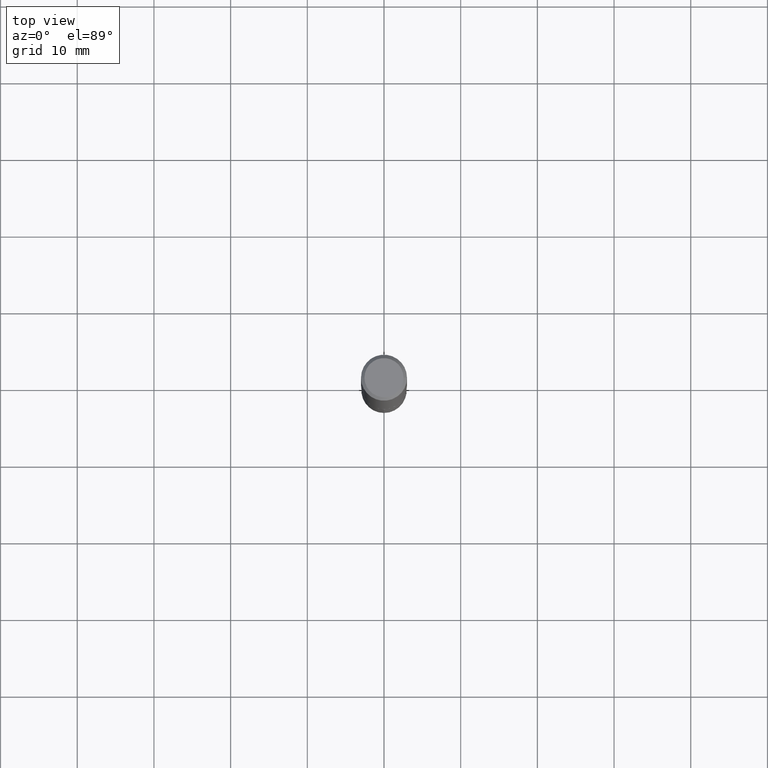
[diagram: clean part render]
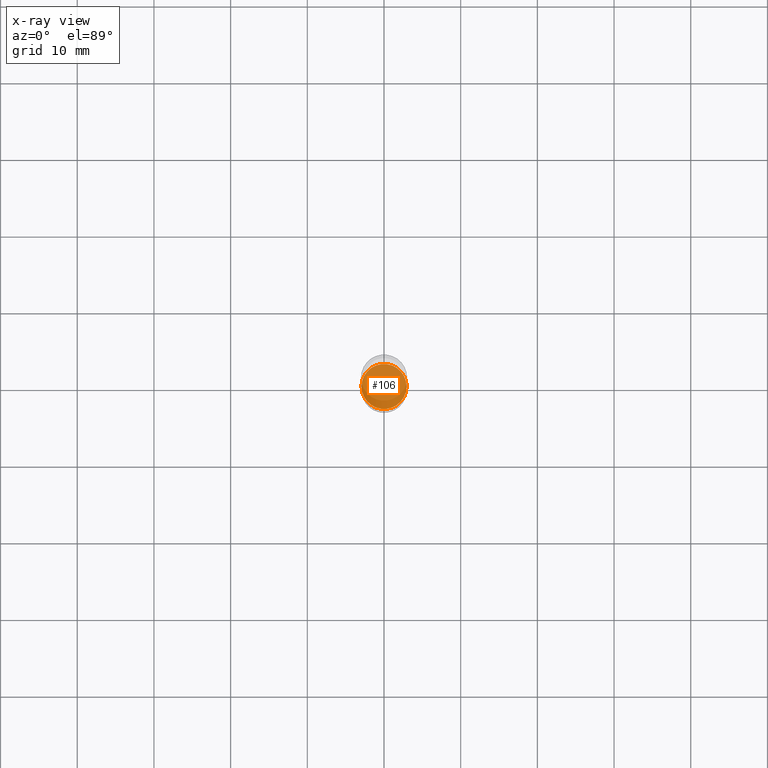
[diagram: x-ray — body ghosted, one internal face saturated and labeled with its STEP entity id]
A machine part, top view, then the same camera in x-ray: the body is ghosted and one INTERNAL B-rep face — a face not visible from any outside direction — is saturated and labeled: STEP entity #106.
In plain terms, the highlighted planar face has unit normal (-0, 0, 1).
Its self-contained STEP definition (entity closure, byte-faithful):
#20 = CARTESIAN_POINT ( 'NONE',  ( -0.1156500000000000028, -8.379851204377634953E-15, -2.636200000000000099 ) ) ;
#23 = DIRECTION ( 'NONE',  ( 1.000000000000000000, -6.982962677686269866E-15, 0.000000000000000000 ) ) ;
#41 = DIRECTION ( 'NONE',  ( -2.438088387897960049E-29, 3.491481338843145188E-15, 1.000000000000000000 ) ) ;
#61 = EDGE_CURVE ( 'NONE', #393, #148, #333, .T. ) ;
#68 = PLANE ( 'NONE',  #284 ) ;
#73 = DIRECTION ( 'NONE',  ( -2.445468806185136597E-29, 3.491481338843145583E-15, 1.000000000000000000 ) ) ;
#106 = ADVANCED_FACE ( 'NONE', ( #251 ), #68, .F. ) ;
#107 = CARTESIAN_POINT ( 'NONE',  ( 6.446744866865257163E-29, -9.204243105458301447E-15, -2.636200000000000099 ) ) ;
#125 = AXIS2_PLACEMENT_3D ( 'NONE', #435, #73, #399 ) ;
#133 = CIRCLE ( 'NONE', #199, 0.1156500000000000028 ) ;
#148 = VERTEX_POINT ( 'NONE', #437 ) ;
#171 = ORIENTED_EDGE ( 'NONE', *, *, #61, .F. ) ;
#184 = EDGE_LOOP ( 'NONE', ( #192, #171 ) ) ;
#192 = ORIENTED_EDGE ( 'NONE', *, *, #294, .F. ) ;
#199 = AXIS2_PLACEMENT_3D ( 'NONE', #300, #453, #23 ) ;
#251 = FACE_OUTER_BOUND ( 'NONE', #184, .T. ) ;
#284 = AXIS2_PLACEMENT_3D ( 'NONE', #107, #41, #463 ) ;
#294 = EDGE_CURVE ( 'NONE', #148, #393, #133, .T. ) ;
#300 = CARTESIAN_POINT ( 'NONE',  ( 6.446744866865257163E-29, -9.204243105458301447E-15, -2.636200000000000099 ) ) ;
#333 = CIRCLE ( 'NONE', #125, 0.1156500000000000028 ) ;
#393 = VERTEX_POINT ( 'NONE', #20 ) ;
#399 = DIRECTION ( 'NONE',  ( 1.000000000000000000, -6.982962677686269866E-15, 0.000000000000000000 ) ) ;
#435 = CARTESIAN_POINT ( 'NONE',  ( 6.446744866865257163E-29, -9.204243105458301447E-15, -2.636200000000000099 ) ) ;
#437 = CARTESIAN_POINT ( 'NONE',  ( 0.1156500000000000028, -1.001182273913271819E-14, -2.636200000000000099 ) ) ;
#453 = DIRECTION ( 'NONE',  ( -2.445468806185136597E-29, 3.491481338843145583E-15, 1.000000000000000000 ) ) ;
#463 = DIRECTION ( 'NONE',  ( 1.000000000000000000, -6.982962677686265922E-15, 4.876176775795935793E-29 ) ) ;